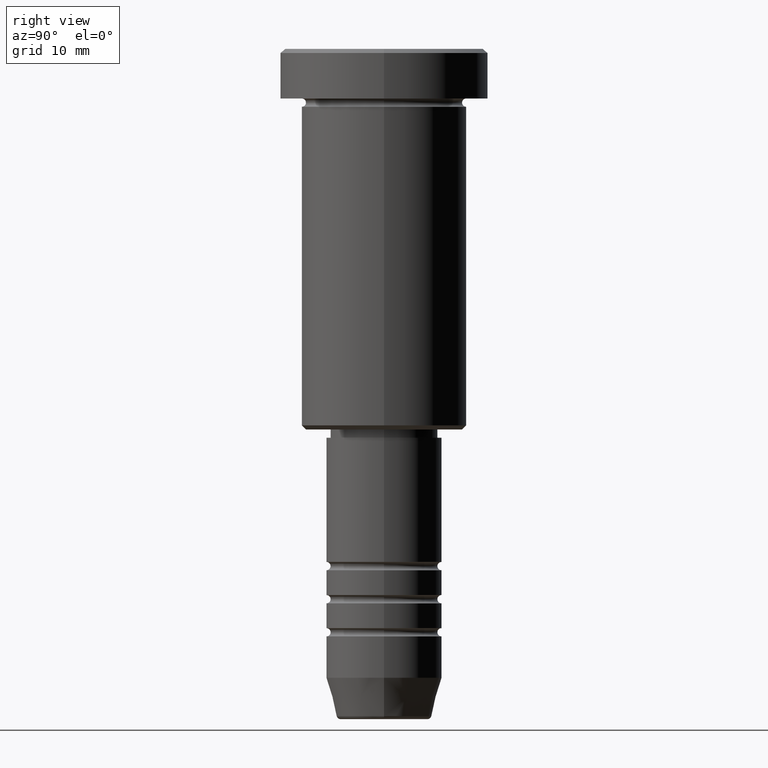
[diagram: clean part render]
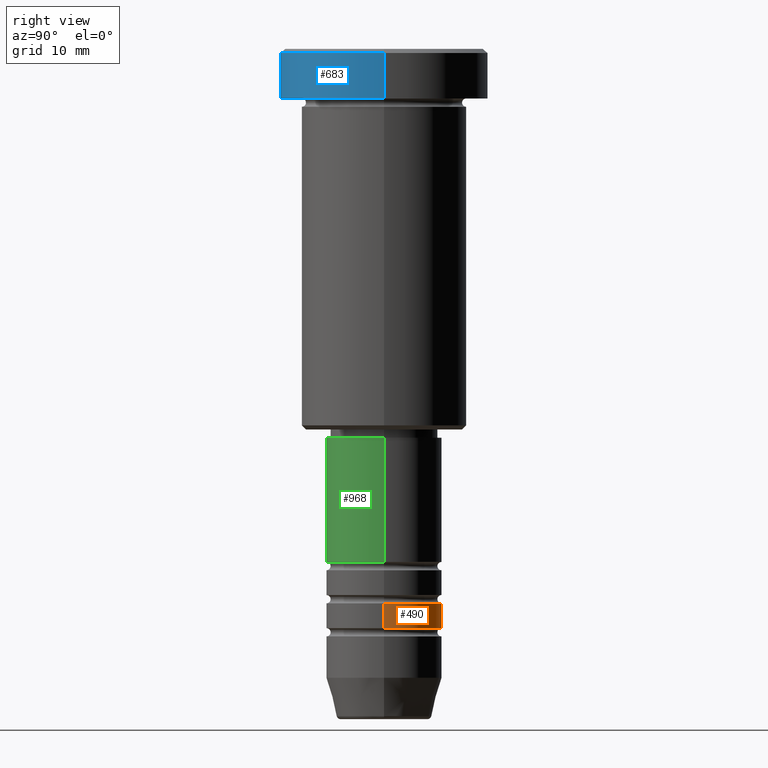
[diagram: same view with three faces highlighted in distinct colors, each labeled with its STEP entity id]
A machine part, right view with three faces highlighted in distinct colors.
Their STEP definitions:

[orange] entity #490 — the highlighted cylindrical surface (partial cylindrical patch) has radius 7 mm, axis along (-0, -0, 1).
#1 = DIRECTION ( 'NONE',  ( 1.000000000000000000, 0.000000000000000000, 0.000000000000000000 ) ) ;
#16 = AXIS2_PLACEMENT_3D ( 'NONE', #1093, #935, #1 ) ;
#28 = VERTEX_POINT ( 'NONE', #678 ) ;
#56 = CIRCLE ( 'NONE', #16, 7.000000000000000888 ) ;
#65 = DIRECTION ( 'NONE',  ( -0.000000000000000000, -0.000000000000000000, 1.000000000000000000 ) ) ;
#82 = EDGE_CURVE ( 'NONE', #28, #321, #838, .T. ) ;
#145 = ORIENTED_EDGE ( 'NONE', *, *, #271, .T. ) ;
#192 = CARTESIAN_POINT ( 'NONE',  ( -7.000000000000000888, 8.572527594031474176E-16, -69.99999999999990052 ) ) ;
#222 = EDGE_LOOP ( 'NONE', ( #145, #231, #756, #236 ) ) ;
#226 = VECTOR ( 'NONE', #960, 1000.000000000000000 ) ;
#227 = LINE ( 'NONE', #603, #226 ) ;
#231 = ORIENTED_EDGE ( 'NONE', *, *, #507, .T. ) ;
#233 = DIRECTION ( 'NONE',  ( 1.000000000000000000, 0.000000000000000000, 0.000000000000000000 ) ) ;
#236 = ORIENTED_EDGE ( 'NONE', *, *, #344, .F. ) ;
#253 = DIRECTION ( 'NONE',  ( 1.000000000000000000, 0.000000000000000000, 0.000000000000000000 ) ) ;
#271 = EDGE_CURVE ( 'NONE', #1065, #1090, #56, .T. ) ;
#308 = CYLINDRICAL_SURFACE ( 'NONE', #861, 7.000000000000000888 ) ;
#321 = VERTEX_POINT ( 'NONE', #364 ) ;
#322 = AXIS2_PLACEMENT_3D ( 'NONE', #1085, #65, #253 ) ;
#344 = EDGE_CURVE ( 'NONE', #1065, #28, #472, .T. ) ;
#364 = CARTESIAN_POINT ( 'NONE',  ( -7.000000000000000000, 8.572527594031473190E-16, -66.99999999999988631 ) ) ;
#404 = FACE_OUTER_BOUND ( 'NONE', #222, .T. ) ;
#438 = VECTOR ( 'NONE', #761, 1000.000000000000000 ) ;
#472 = LINE ( 'NONE', #833, #438 ) ;
#490 = ADVANCED_FACE ( 'NONE', ( #404 ), #308, .T. ) ;
#507 = EDGE_CURVE ( 'NONE', #1090, #321, #227, .T. ) ;
#567 = CARTESIAN_POINT ( 'NONE',  ( 7.000000000000000888, 0.000000000000000000, -69.99999999999990052 ) ) ;
#603 = CARTESIAN_POINT ( 'NONE',  ( -7.000000000000000888, 8.572527594031474176E-16, 0.000000000000000000 ) ) ;
#678 = CARTESIAN_POINT ( 'NONE',  ( 7.000000000000000000, 0.000000000000000000, -66.99999999999988631 ) ) ;
#756 = ORIENTED_EDGE ( 'NONE', *, *, #82, .F. ) ;
#761 = DIRECTION ( 'NONE',  ( -0.000000000000000000, -0.000000000000000000, 1.000000000000000000 ) ) ;
#833 = CARTESIAN_POINT ( 'NONE',  ( 7.000000000000000888, 0.000000000000000000, 0.000000000000000000 ) ) ;
#838 = CIRCLE ( 'NONE', #322, 7.000000000000000000 ) ;
#861 = AXIS2_PLACEMENT_3D ( 'NONE', #1132, #948, #233 ) ;
#935 = DIRECTION ( 'NONE',  ( -0.000000000000000000, -0.000000000000000000, 1.000000000000000000 ) ) ;
#948 = DIRECTION ( 'NONE',  ( -0.000000000000000000, -0.000000000000000000, 1.000000000000000000 ) ) ;
#960 = DIRECTION ( 'NONE',  ( -0.000000000000000000, -0.000000000000000000, 1.000000000000000000 ) ) ;
#1065 = VERTEX_POINT ( 'NONE', #567 ) ;
#1085 = CARTESIAN_POINT ( 'NONE',  ( 0.000000000000000000, 0.000000000000000000, -66.99999999999988631 ) ) ;
#1090 = VERTEX_POINT ( 'NONE', #192 ) ;
#1093 = CARTESIAN_POINT ( 'NONE',  ( 0.000000000000000000, 0.000000000000000000, -69.99999999999990052 ) ) ;
#1132 = CARTESIAN_POINT ( 'NONE',  ( 0.000000000000000000, 0.000000000000000000, 0.000000000000000000 ) ) ;

[blue] entity #683 — the highlighted cylindrical surface (partial cylindrical patch) has radius 12.5 mm, axis along (-0, -0, 1).
#12 = ORIENTED_EDGE ( 'NONE', *, *, #540, .T. ) ;
#102 = DIRECTION ( 'NONE',  ( 1.000000000000000000, 0.000000000000000000, 0.000000000000000000 ) ) ;
#121 = CARTESIAN_POINT ( 'NONE',  ( 0.000000000000000000, 0.000000000000000000, 0.000000000000000000 ) ) ;
#138 = CARTESIAN_POINT ( 'NONE',  ( -12.50000000000000000, 1.530808498934191521E-15, -0.5000000000000056621 ) ) ;
#150 = AXIS2_PLACEMENT_3D ( 'NONE', #755, #1017, #1002 ) ;
#193 = LINE ( 'NONE', #498, #978 ) ;
#218 = DIRECTION ( 'NONE',  ( 1.000000000000000000, 0.000000000000000000, 0.000000000000000000 ) ) ;
#260 = ORIENTED_EDGE ( 'NONE', *, *, #865, .F. ) ;
#304 = FACE_OUTER_BOUND ( 'NONE', #1059, .T. ) ;
#315 = EDGE_CURVE ( 'NONE', #1011, #889, #730, .T. ) ;
#343 = AXIS2_PLACEMENT_3D ( 'NONE', #1006, #972, #102 ) ;
#455 = ORIENTED_EDGE ( 'NONE', *, *, #696, .T. ) ;
#498 = CARTESIAN_POINT ( 'NONE',  ( 12.50000000000000000, 0.000000000000000000, 0.000000000000000000 ) ) ;
#528 = CARTESIAN_POINT ( 'NONE',  ( -12.50000000000000000, 1.530808498934191521E-15, 0.000000000000000000 ) ) ;
#540 = EDGE_CURVE ( 'NONE', #1060, #1050, #820, .T. ) ;
#584 = ORIENTED_EDGE ( 'NONE', *, *, #315, .T. ) ;
#683 = ADVANCED_FACE ( 'NONE', ( #304 ), #926, .T. ) ;
#696 = EDGE_CURVE ( 'NONE', #1050, #1011, #193, .T. ) ;
#730 = CIRCLE ( 'NONE', #150, 12.50000000000000000 ) ;
#755 = CARTESIAN_POINT ( 'NONE',  ( 0.000000000000000000, 0.000000000000000000, -0.5000000000000056621 ) ) ;
#777 = LINE ( 'NONE', #528, #1080 ) ;
#820 = CIRCLE ( 'NONE', #343, 12.50000000000000000 ) ;
#865 = EDGE_CURVE ( 'NONE', #1060, #889, #777, .T. ) ;
#889 = VERTEX_POINT ( 'NONE', #138 ) ;
#902 = CARTESIAN_POINT ( 'NONE',  ( 12.50000000000000000, 0.000000000000000000, -0.5000000000000056621 ) ) ;
#926 = CYLINDRICAL_SURFACE ( 'NONE', #955, 12.50000000000000000 ) ;
#952 = DIRECTION ( 'NONE',  ( -0.000000000000000000, -0.000000000000000000, 1.000000000000000000 ) ) ;
#955 = AXIS2_PLACEMENT_3D ( 'NONE', #121, #952, #218 ) ;
#972 = DIRECTION ( 'NONE',  ( -0.000000000000000000, -0.000000000000000000, 1.000000000000000000 ) ) ;
#978 = VECTOR ( 'NONE', #1099, 1000.000000000000000 ) ;
#988 = CARTESIAN_POINT ( 'NONE',  ( 12.50000000000000000, 0.000000000000000000, -5.999999999999996447 ) ) ;
#1002 = DIRECTION ( 'NONE',  ( 1.000000000000000000, 0.000000000000000000, 0.000000000000000000 ) ) ;
#1006 = CARTESIAN_POINT ( 'NONE',  ( 0.000000000000000000, 0.000000000000000000, -5.999999999999996447 ) ) ;
#1011 = VERTEX_POINT ( 'NONE', #902 ) ;
#1017 = DIRECTION ( 'NONE',  ( 0.000000000000000000, 0.000000000000000000, -1.000000000000000000 ) ) ;
#1050 = VERTEX_POINT ( 'NONE', #988 ) ;
#1059 = EDGE_LOOP ( 'NONE', ( #260, #12, #455, #584 ) ) ;
#1060 = VERTEX_POINT ( 'NONE', #1115 ) ;
#1080 = VECTOR ( 'NONE', #1147, 1000.000000000000000 ) ;
#1099 = DIRECTION ( 'NONE',  ( -0.000000000000000000, -0.000000000000000000, 1.000000000000000000 ) ) ;
#1115 = CARTESIAN_POINT ( 'NONE',  ( -12.50000000000000000, 1.530808498934191521E-15, -5.999999999999996447 ) ) ;
#1147 = DIRECTION ( 'NONE',  ( -0.000000000000000000, -0.000000000000000000, 1.000000000000000000 ) ) ;

[green] entity #968 — the highlighted cylindrical surface (partial cylindrical patch) has radius 7 mm, axis along (-0, -0, 1).
#154 = VECTOR ( 'NONE', #679, 1000.000000000000000 ) ;
#195 = VERTEX_POINT ( 'NONE', #351 ) ;
#274 = CYLINDRICAL_SURFACE ( 'NONE', #1067, 7.000000000000000888 ) ;
#351 = CARTESIAN_POINT ( 'NONE',  ( -7.000000000000000000, 8.572527594031473190E-16, -47.00000000000000711 ) ) ;
#355 = VERTEX_POINT ( 'NONE', #373 ) ;
#373 = CARTESIAN_POINT ( 'NONE',  ( 7.000000000000000000, 0.000000000000000000, -47.00000000000000711 ) ) ;
#408 = CARTESIAN_POINT ( 'NONE',  ( 7.000000000000000888, 0.000000000000000000, -61.99999999999990052 ) ) ;
#447 = EDGE_CURVE ( 'NONE', #195, #355, #597, .T. ) ;
#451 = CARTESIAN_POINT ( 'NONE',  ( 0.000000000000000000, 0.000000000000000000, 0.000000000000000000 ) ) ;
#457 = DIRECTION ( 'NONE',  ( -0.000000000000000000, -0.000000000000000000, 1.000000000000000000 ) ) ;
#487 = CARTESIAN_POINT ( 'NONE',  ( 0.000000000000000000, 0.000000000000000000, -47.00000000000000711 ) ) ;
#543 = ORIENTED_EDGE ( 'NONE', *, *, #447, .F. ) ;
#572 = EDGE_LOOP ( 'NONE', ( #750, #910, #1137, #543 ) ) ;
#597 = CIRCLE ( 'NONE', #749, 7.000000000000000000 ) ;
#601 = EDGE_CURVE ( 'NONE', #640, #705, #1118, .T. ) ;
#614 = DIRECTION ( 'NONE',  ( 1.000000000000000000, 0.000000000000000000, 0.000000000000000000 ) ) ;
#639 = VECTOR ( 'NONE', #672, 1000.000000000000000 ) ;
#640 = VERTEX_POINT ( 'NONE', #1088 ) ;
#672 = DIRECTION ( 'NONE',  ( -0.000000000000000000, -0.000000000000000000, 1.000000000000000000 ) ) ;
#679 = DIRECTION ( 'NONE',  ( -0.000000000000000000, -0.000000000000000000, 1.000000000000000000 ) ) ;
#705 = VERTEX_POINT ( 'NONE', #408 ) ;
#707 = CARTESIAN_POINT ( 'NONE',  ( 0.000000000000000000, 0.000000000000000000, -61.99999999999990052 ) ) ;
#749 = AXIS2_PLACEMENT_3D ( 'NONE', #487, #783, #854 ) ;
#750 = ORIENTED_EDGE ( 'NONE', *, *, #1053, .F. ) ;
#757 = LINE ( 'NONE', #845, #154 ) ;
#783 = DIRECTION ( 'NONE',  ( -0.000000000000000000, -0.000000000000000000, 1.000000000000000000 ) ) ;
#825 = DIRECTION ( 'NONE',  ( 1.000000000000000000, 0.000000000000000000, 0.000000000000000000 ) ) ;
#845 = CARTESIAN_POINT ( 'NONE',  ( 7.000000000000000888, 0.000000000000000000, 0.000000000000000000 ) ) ;
#854 = DIRECTION ( 'NONE',  ( 1.000000000000000000, 0.000000000000000000, 0.000000000000000000 ) ) ;
#898 = DIRECTION ( 'NONE',  ( -0.000000000000000000, -0.000000000000000000, 1.000000000000000000 ) ) ;
#908 = LINE ( 'NONE', #1012, #639 ) ;
#910 = ORIENTED_EDGE ( 'NONE', *, *, #601, .T. ) ;
#968 = ADVANCED_FACE ( 'NONE', ( #1091 ), #274, .T. ) ;
#1012 = CARTESIAN_POINT ( 'NONE',  ( -7.000000000000000888, 8.572527594031474176E-16, 0.000000000000000000 ) ) ;
#1048 = AXIS2_PLACEMENT_3D ( 'NONE', #707, #898, #614 ) ;
#1053 = EDGE_CURVE ( 'NONE', #640, #195, #908, .T. ) ;
#1067 = AXIS2_PLACEMENT_3D ( 'NONE', #451, #457, #825 ) ;
#1088 = CARTESIAN_POINT ( 'NONE',  ( -7.000000000000000888, 8.572527594031474176E-16, -61.99999999999990052 ) ) ;
#1091 = FACE_OUTER_BOUND ( 'NONE', #572, .T. ) ;
#1118 = CIRCLE ( 'NONE', #1048, 7.000000000000000888 ) ;
#1120 = EDGE_CURVE ( 'NONE', #705, #355, #757, .T. ) ;
#1137 = ORIENTED_EDGE ( 'NONE', *, *, #1120, .T. ) ;